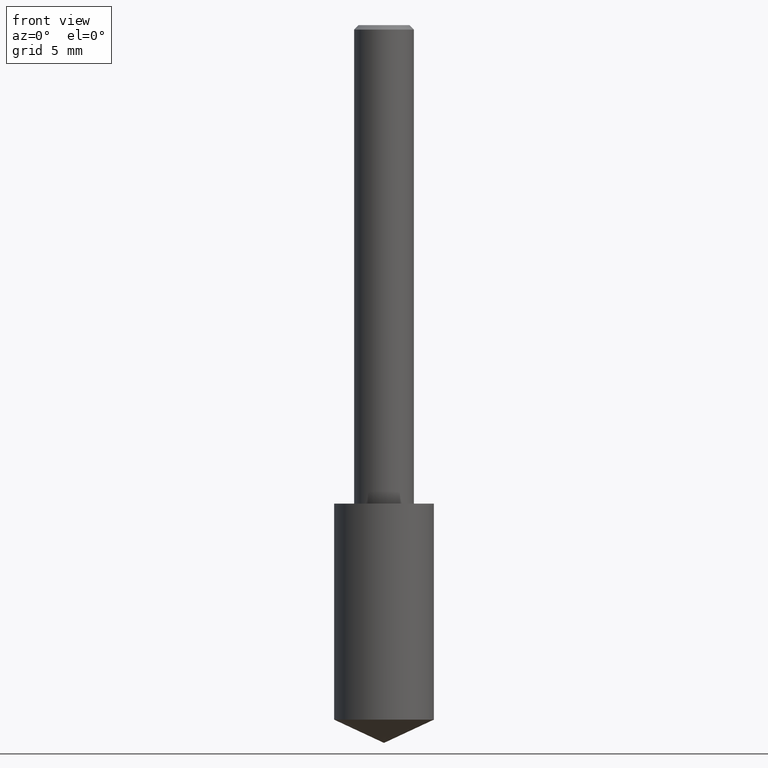
[diagram: clean part render]
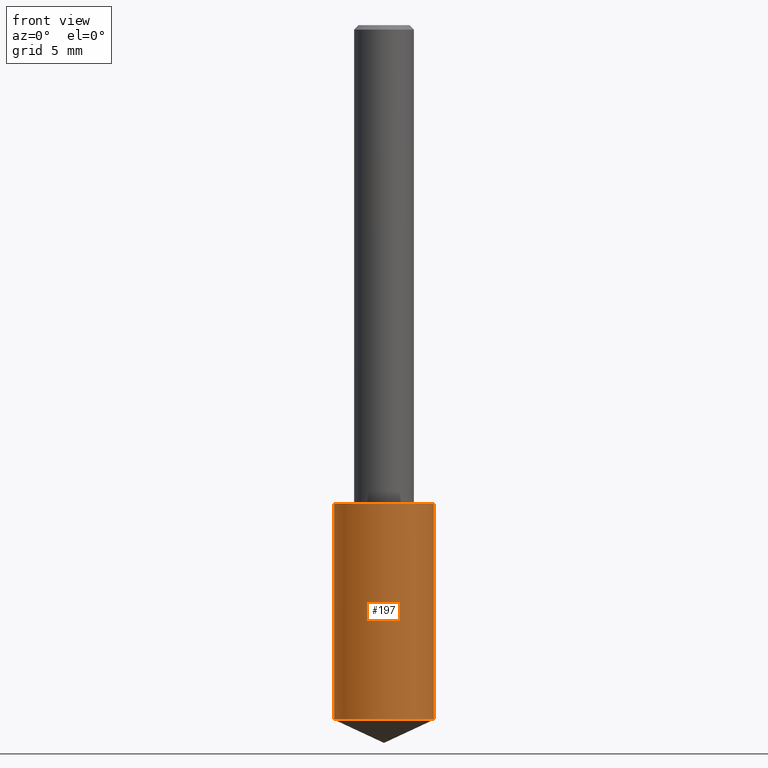
[diagram: same view with one face highlighted and labeled with its STEP entity id]
A machine part, front view. The second image highlights one B-rep face of the part: STEP entity #197.
In plain terms, the highlighted cylindrical surface (partial cylindrical patch) has radius 2.6505 mm, axis along (-0, 0, 1).
Its self-contained STEP definition (entity closure, byte-faithful):
#1 = FACE_OUTER_BOUND ( 'NONE', #270, .T. ) ;
#12 = VERTEX_POINT ( 'NONE', #180 ) ;
#17 = CARTESIAN_POINT ( 'NONE',  ( 3.549208643447727704E-29, -5.067329305087193163E-15, -1.451340795871526312 ) ) ;
#24 = AXIS2_PLACEMENT_3D ( 'NONE', #172, #228, #335 ) ;
#28 = VECTOR ( 'NONE', #203, 39.37007874015748143 ) ;
#29 = LINE ( 'NONE', #340, #94 ) ;
#32 = DIRECTION ( 'NONE',  ( 1.000000000000000000, -6.982962677686268288E-15, 0.000000000000000000 ) ) ;
#35 = VERTEX_POINT ( 'NONE', #311 ) ;
#69 = CARTESIAN_POINT ( 'NONE',  ( 0.1043499999999999844, -4.220153494259708388E-15, -1.000000000000000222 ) ) ;
#71 = VERTEX_POINT ( 'NONE', #69 ) ;
#88 = DIRECTION ( 'NONE',  ( -2.445468806185136597E-29, 3.491481338843145583E-15, 1.000000000000000000 ) ) ;
#94 = VECTOR ( 'NONE', #135, 39.37007874015748143 ) ;
#98 = EDGE_CURVE ( 'NONE', #35, #12, #102, .T. ) ;
#102 = LINE ( 'NONE', #230, #28 ) ;
#121 = ORIENTED_EDGE ( 'NONE', *, *, #286, .T. ) ;
#126 = EDGE_CURVE ( 'NONE', #12, #71, #226, .T. ) ;
#135 = DIRECTION ( 'NONE',  ( -2.445468806185136877E-29, 3.491481338843145188E-15, 1.000000000000000000 ) ) ;
#143 = AXIS2_PLACEMENT_3D ( 'NONE', #17, #227, #310 ) ;
#149 = AXIS2_PLACEMENT_3D ( 'NONE', #262, #88, #32 ) ;
#166 = CIRCLE ( 'NONE', #143, 0.1043499999999999844 ) ;
#172 = CARTESIAN_POINT ( 'NONE',  ( 2.445468806185136877E-29, -3.491481338843145977E-15, -1.000000000000000222 ) ) ;
#180 = CARTESIAN_POINT ( 'NONE',  ( -0.1043499999999999844, -3.537953977199505038E-15, -1.000000000000000222 ) ) ;
#188 = CYLINDRICAL_SURFACE ( 'NONE', #149, 0.1043499999999999844 ) ;
#197 = ADVANCED_FACE ( 'NONE', ( #1 ), #188, .T. ) ;
#203 = DIRECTION ( 'NONE',  ( -2.445468806185136877E-29, 3.491481338843145188E-15, 1.000000000000000000 ) ) ;
#223 = EDGE_CURVE ( 'NONE', #333, #71, #29, .T. ) ;
#226 = CIRCLE ( 'NONE', #24, 0.1043499999999999844 ) ;
#227 = DIRECTION ( 'NONE',  ( -2.445468806185136597E-29, 3.491481338843145583E-15, 1.000000000000000000 ) ) ;
#228 = DIRECTION ( 'NONE',  ( -2.445468806185136597E-29, 3.491481338843145583E-15, 1.000000000000000000 ) ) ;
#229 = CARTESIAN_POINT ( 'NONE',  ( 0.1043499999999999706, -5.796001460503755574E-15, -1.451340795871526312 ) ) ;
#230 = CARTESIAN_POINT ( 'NONE',  ( -0.1043499999999999844, -2.750029994077481840E-15, -1.000000000000000222 ) ) ;
#262 = CARTESIAN_POINT ( 'NONE',  ( 2.445468806185137438E-29, -3.491481338843146371E-15, -1.000000000000000222 ) ) ;
#270 = EDGE_LOOP ( 'NONE', ( #327, #121, #278, #274 ) ) ;
#274 = ORIENTED_EDGE ( 'NONE', *, *, #126, .F. ) ;
#278 = ORIENTED_EDGE ( 'NONE', *, *, #223, .T. ) ;
#286 = EDGE_CURVE ( 'NONE', #35, #333, #166, .T. ) ;
#310 = DIRECTION ( 'NONE',  ( 1.000000000000000000, -6.982962677686263555E-15, 0.000000000000000000 ) ) ;
#311 = CARTESIAN_POINT ( 'NONE',  ( -0.1043499999999999706, -4.325877960321529026E-15, -1.451340795871526312 ) ) ;
#327 = ORIENTED_EDGE ( 'NONE', *, *, #98, .F. ) ;
#333 = VERTEX_POINT ( 'NONE', #229 ) ;
#335 = DIRECTION ( 'NONE',  ( 1.000000000000000000, -6.982962677686268288E-15, 0.000000000000000000 ) ) ;
#340 = CARTESIAN_POINT ( 'NONE',  ( 0.1043499999999999844, -4.220153494259708388E-15, -1.000000000000000222 ) ) ;